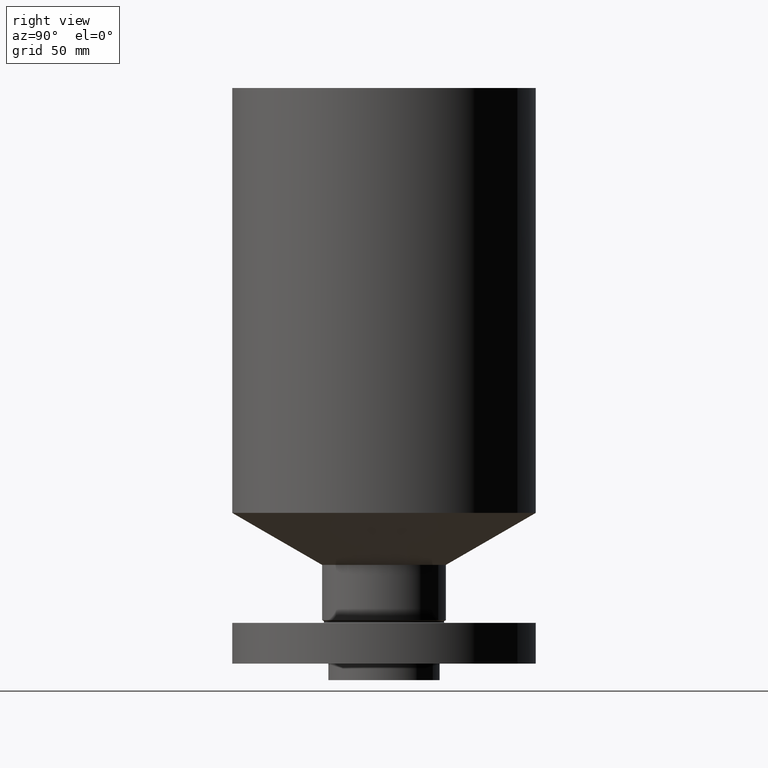
[diagram: clean part render]
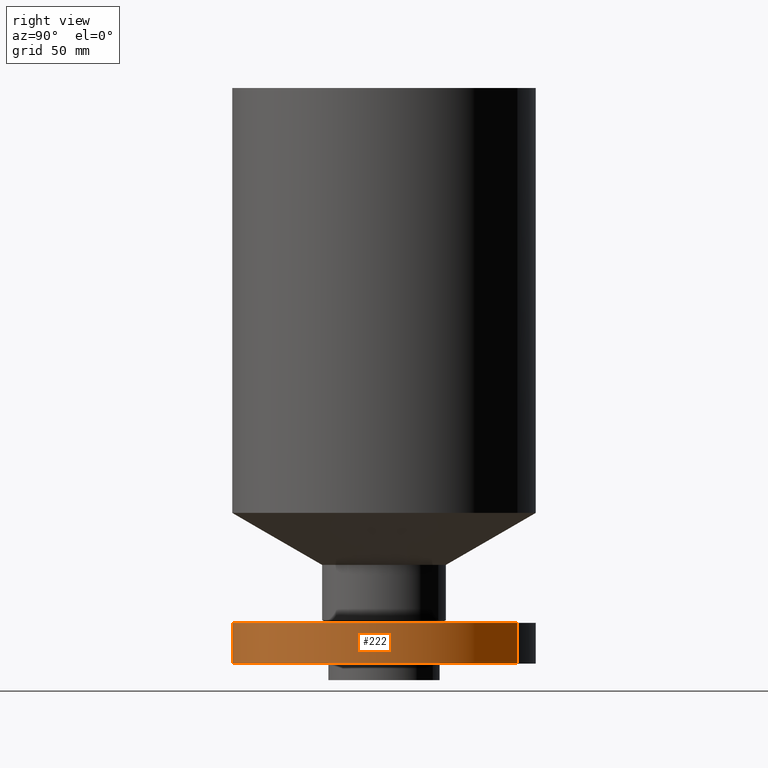
[diagram: same view with one face highlighted and labeled with its STEP entity id]
A machine part, right view. The second image highlights one B-rep face of the part: STEP entity #222.
In plain terms, the highlighted cylindrical surface (partial cylindrical patch) has radius 58.674 mm, axis along (0, 0, -1).
Its self-contained STEP definition (entity closure, byte-faithful):
#91=AXIS2_PLACEMENT_3D('Circle Axis2P3D',#89,#90,$) ;
#183=AXIS2_PLACEMENT_3D('Cylinder Axis2P3D',#180,#181,#182) ;
#213=AXIS2_PLACEMENT_3D('Circle Axis2P3D',#211,#212,$) ;
#84=CARTESIAN_POINT('Vertex',(-1.10747299418,-2.02721571797,-1.1189649382E-015)) ;
#86=CARTESIAN_POINT('Vertex',(1.10747299418,2.02721571797,-1.1189649382E-015)) ;
#89=CARTESIAN_POINT('Axis2P3D Location',(0.,0.,0.)) ;
#180=CARTESIAN_POINT('Axis2P3D Location',(0.,0.,4.25000000002)) ;
#185=CARTESIAN_POINT('Line Origine',(-1.10747299418,-2.02721571797,5.52048493442)) ;
#189=CARTESIAN_POINT('Vertex',(-1.10747299418,-2.02721571797,0.620000000002)) ;
#196=CARTESIAN_POINT('Vertex',(1.10747299418,2.02721571797,0.620000000002)) ;
#199=CARTESIAN_POINT('Line Origine',(1.10747299418,2.02721571797,5.52048493442)) ;
#211=CARTESIAN_POINT('Axis2P3D Location',(0.,0.,0.620000000002)) ;
#90=DIRECTION('Axis2P3D Direction',(0.,0.,-0.0393700787402)) ;
#181=DIRECTION('Axis2P3D Direction',(0.,0.,-0.0393700787402)) ;
#182=DIRECTION('Axis2P3D XDirection',(-0.0188750212049,-0.0345504945626,0.)) ;
#186=DIRECTION('Vector Direction',(0.,0.,-0.0393700787402)) ;
#200=DIRECTION('Vector Direction',(0.,0.,-0.0393700787402)) ;
#212=DIRECTION('Axis2P3D Direction',(0.,0.,-0.0393700787402)) ;
#187=VECTOR('Line Direction',#186,0.0393700787402) ;
#201=VECTOR('Line Direction',#200,0.0393700787402) ;
#217=ORIENTED_EDGE('',*,*,#93,.F.) ;
#218=ORIENTED_EDGE('',*,*,#203,.T.) ;
#219=ORIENTED_EDGE('',*,*,#215,.T.) ;
#220=ORIENTED_EDGE('',*,*,#191,.F.) ;
#222=ADVANCED_FACE('PartBody',(#221),#184,.T.) ;
#92=CIRCLE('generated circle',#91,2.31000000001) ;
#214=CIRCLE('generated circle',#213,2.31000000001) ;
#184=CYLINDRICAL_SURFACE('generated cylinder',#183,2.31000000001) ;
#93=EDGE_CURVE('',#87,#85,#92,.T.) ;
#191=EDGE_CURVE('',#85,#190,#188,.F.) ;
#203=EDGE_CURVE('',#87,#197,#202,.F.) ;
#215=EDGE_CURVE('',#197,#190,#214,.T.) ;
#216=EDGE_LOOP('',(#217,#218,#219,#220)) ;
#221=FACE_OUTER_BOUND('',#216,.T.) ;
#188=LINE('Line',#185,#187) ;
#202=LINE('Line',#199,#201) ;
#85=VERTEX_POINT('',#84) ;
#87=VERTEX_POINT('',#86) ;
#190=VERTEX_POINT('',#189) ;
#197=VERTEX_POINT('',#196) ;